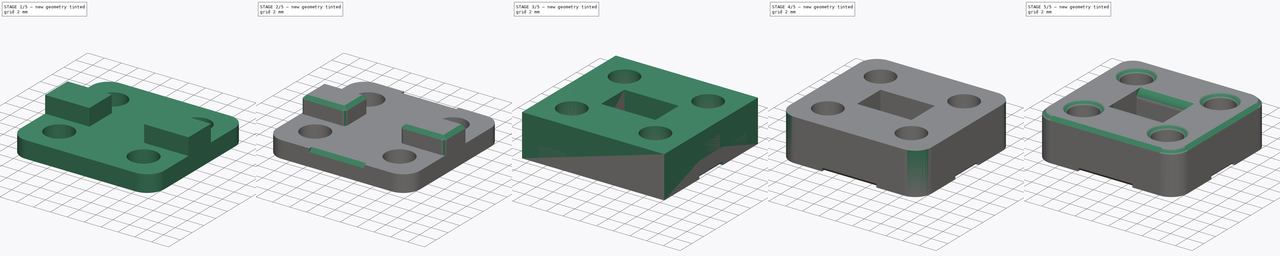
[diagram: build sequence overview — one tinted view per stage of 5, left to right]
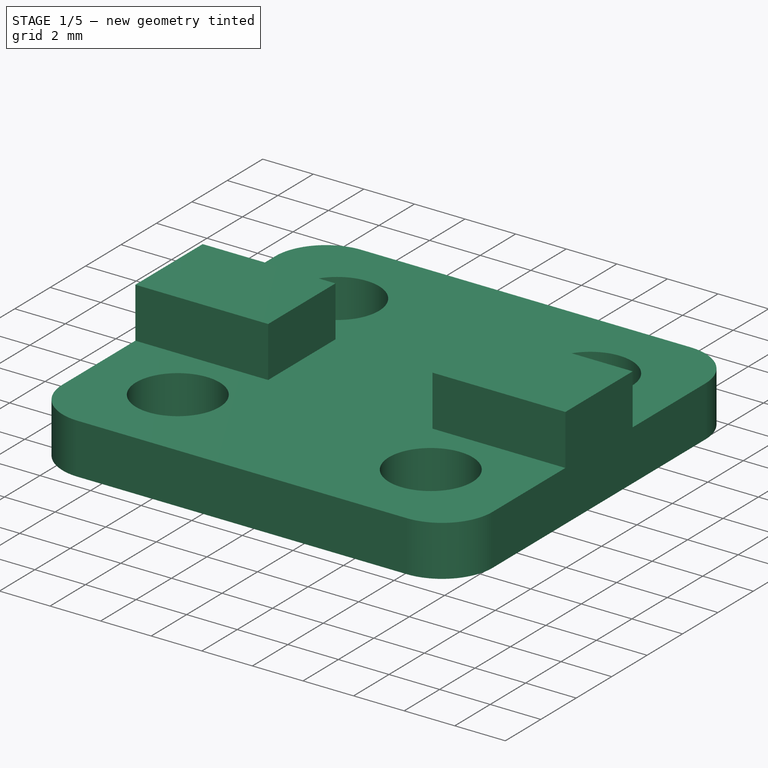
[diagram: stage 1 of 5 — iso view after this stage's code; geometry added in this stage tinted green]
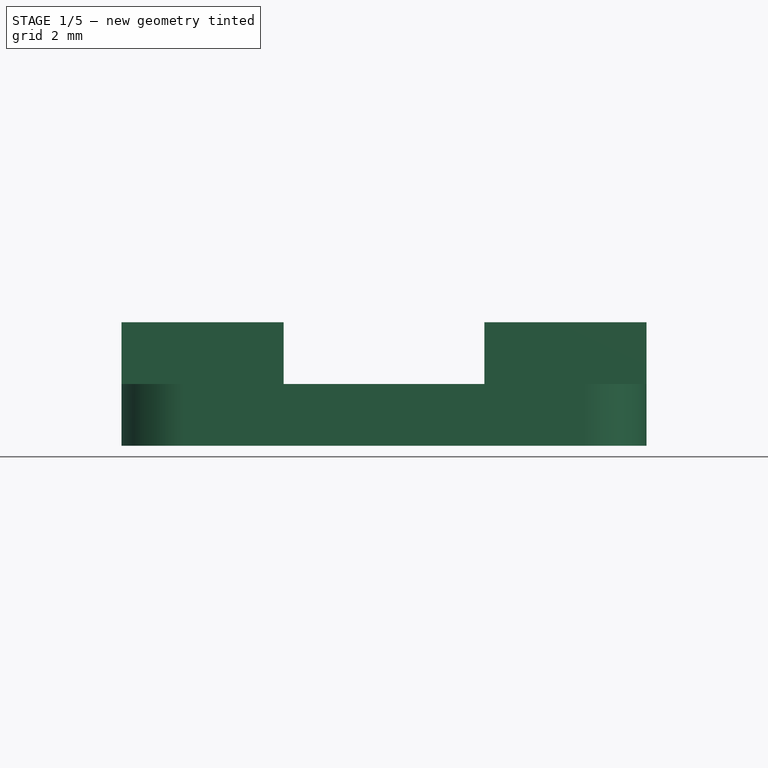
[diagram: stage 1 of 5 — front view after this stage's code; geometry added in this stage tinted green]
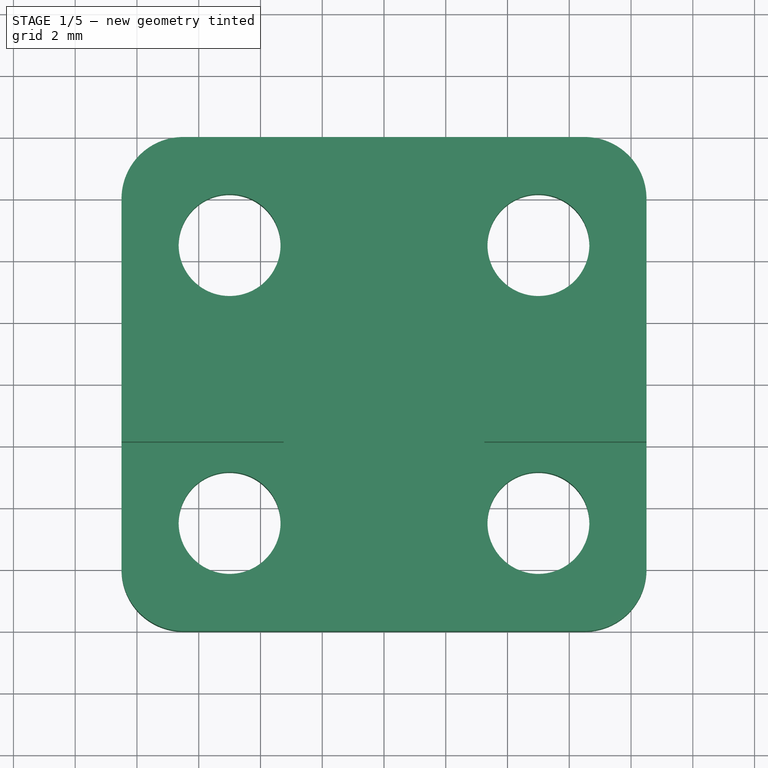
[diagram: stage 1 of 5 — top view after this stage's code; geometry added in this stage tinted green]
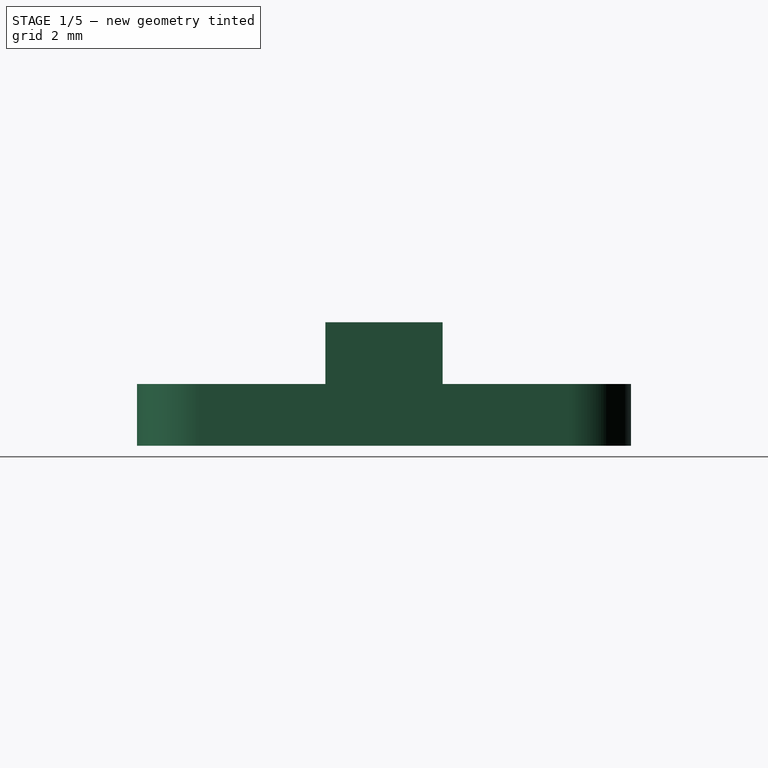
[diagram: stage 1 of 5 — right view after this stage's code; geometry added in this stage tinted green]
FCSTD DOCUMENT  (FreeCAD 0.19R24291 (Git))
Label: belt-mounter
License: All rights reserved
LicenseURL: http://en.wikipedia.org/wiki/All_rights_reserved
objects: Sketcher::SketchObject×8, PartDesign::Fillet×5, PartDesign::Pocket×5, PartDesign::Pad×3, PartDesign::Chamfer×3, PartDesign::Body×2
note: 42 computed .brp shape members not serialized (recipe doc carries the construction recipe); baked Part::Feature solids carry a one-line shape summary decoded from their .brp

FEATURE [Sketcher::SketchObject] Sketch
  FullyConstrained = false
  MapMode = 5
  Support = -> [XY_Plane]
  sketch-geometry (12):
    g0: Circle CenterX=-5 CenterY=4.5 CenterZ=0 NormalX=0 NormalY=0 NormalZ=1 AngleXU=0 Radius=1.65
    g1: Circle CenterX=5 CenterY=4.5 CenterZ=0 NormalX=0 NormalY=0 NormalZ=1 AngleXU=0 Radius=1.65
    g2: Circle CenterX=-5 CenterY=-4.5 CenterZ=0 NormalX=0 NormalY=0 NormalZ=1 AngleXU=0 Radius=1.65
    g3: Circle CenterX=5 CenterY=-4.5 CenterZ=0 NormalX=0 NormalY=0 NormalZ=1 AngleXU=0 Radius=1.65
    g4: LineSegment StartX=-3.25 StartY=18.4645 StartZ=0 EndX=3.25 EndY=18.4645 EndZ=0
    g5: LineSegment StartX=3.25 StartY=18.4645 StartZ=0 EndX=3.25 EndY=-11.2369 EndZ=0
    g6: LineSegment StartX=3.25 StartY=-11.2369 StartZ=0 EndX=-3.25 EndY=-11.2369 EndZ=0
    g7: LineSegment StartX=-3.25 StartY=-11.2369 StartZ=0 EndX=-3.25 EndY=18.4645 EndZ=0
    g8: LineSegment StartX=-8.5 StartY=8 StartZ=0 EndX=8.5 EndY=8 EndZ=0
    g9: LineSegment StartX=8.5 StartY=8 StartZ=0 EndX=8.5 EndY=-8 EndZ=0
    g10: LineSegment StartX=8.5 StartY=-8 StartZ=0 EndX=-8.5 EndY=-8 EndZ=0
    g11: LineSegment StartX=-8.5 StartY=-8 StartZ=0 EndX=-8.5 EndY=8 EndZ=0
  constraints (34):
    c: Horizontal(g0,g1)
    c: Horizontal(g2,g3)
    c: Vertical(g0,g2)
    c: Vertical(g1,g3)
    c: Equal(g2,g0)
    c: Equal(g0,g1)
    c: Equal(g1,g3)
    c: Radius(g1) = 1.65
    c: DistanceX(g0,g-1) = 5
    c: DistanceX(g0,g1) = 10
    c: DistanceY(g-1,g0) = 4.5
    c: DistanceY(g2,g0) = 9
    c: Coincident(g4,g5)
    c: Coincident(g5,g6)
    c: Coincident(g6,g7)
    c: Coincident(g7,g4)
    c: Horizontal(g4)
    c: Horizontal(g6)
    c: Vertical(g5)
    c: Vertical(g7)
    c: DistanceX(g4,g4) = 6.5
    c: DistanceX(g4,g-1) = 3.25
    c: Coincident(g8,g9)
    c: Coincident(g9,g10)
    c: Coincident(g10,g11)
    c: Coincident(g11,g8)
    c: Horizontal(g8)
    c: Horizontal(g10)
    c: Vertical(g9)
    c: Vertical(g11)
    c: DistanceX(g8,g0) = 3.5
    c: DistanceX(g1,g8) = 3.5
    c: DistanceY(g0,g8) = 3.5
    c: DistanceY(g9,g3) = 3.5
FEATURE [PartDesign::Pad] Pad
  Direction = (1,1,1)
  Length = 2
  Length2 = 100
  Profile = -> Sketch
  Type = 0
FEATURE [Sketcher::SketchObject] Sketch001
  FullyConstrained = true
  MapMode = 5
  Placement = pos=(0,0,2) rot=(0,0,1;0rad)
  Support = -> [Pad]
  sketch-geometry (8):
    g0: LineSegment StartX=-8.5 StartY=1.9 StartZ=0 EndX=-3.25 EndY=1.9 EndZ=0
    g1: LineSegment StartX=-3.25 StartY=1.9 StartZ=0 EndX=-3.25 EndY=-1.9 EndZ=0
    g2: LineSegment StartX=-3.25 StartY=-1.9 StartZ=0 EndX=-8.5 EndY=-1.9 EndZ=0
    g3: LineSegment StartX=-8.5 StartY=-1.9 StartZ=0 EndX=-8.5 EndY=1.9 EndZ=0
    g4: LineSegment StartX=3.25 StartY=1.9 StartZ=0 EndX=8.5 EndY=1.9 EndZ=0
    g5: LineSegment StartX=8.5 StartY=1.9 StartZ=0 EndX=8.5 EndY=-1.9 EndZ=0
    g6: LineSegment StartX=8.5 StartY=-1.9 StartZ=0 EndX=3.25 EndY=-1.9 EndZ=0
    g7: LineSegment StartX=3.25 StartY=-1.9 StartZ=0 EndX=3.25 EndY=1.9 EndZ=0
  constraints (24):
    c: Coincident(g0,g1)
    c: Coincident(g1,g2)
    c: Coincident(g2,g3)
    c: Coincident(g3,g0)
    c: Horizontal(g0)
    c: Horizontal(g2)
    c: Vertical(g1)
    c: Vertical(g3)
    c: Coincident(g4,g5)
    c: Coincident(g5,g6)
    c: Coincident(g6,g7)
    c: Coincident(g7,g4)
    c: Horizontal(g4)
    c: Horizontal(g6)
    c: Vertical(g5)
    c: Vertical(g7)
    c: Horizontal(g1,g6)
    c: Horizontal(g4,g0)
    c: DistanceX(g1,g-1) = 3.25
    c: DistanceX(g-1,g6) = 3.25
    c: DistanceX(g0,g-1) = 8.5
    c: DistanceX(g-1,g4) = 8.5
    c: DistanceY(g1,g-1) = 1.9
    c: DistanceY(g1,g1) = 3.8
FEATURE [PartDesign::Pad] Pad001
  BaseFeature = -> Pad
  Direction = (1,1,1)
  Length = 2
  Length2 = 100
  Profile = -> Sketch001
  Type = 0
FEATURE [PartDesign::Fillet] Fillet
  Base = -> Pad001 [Edge10,Edge5,Edge2,Edge1]
  BaseFeature = -> Pad001
  Radius = 2
  Refine = true
  SupportTransform = false
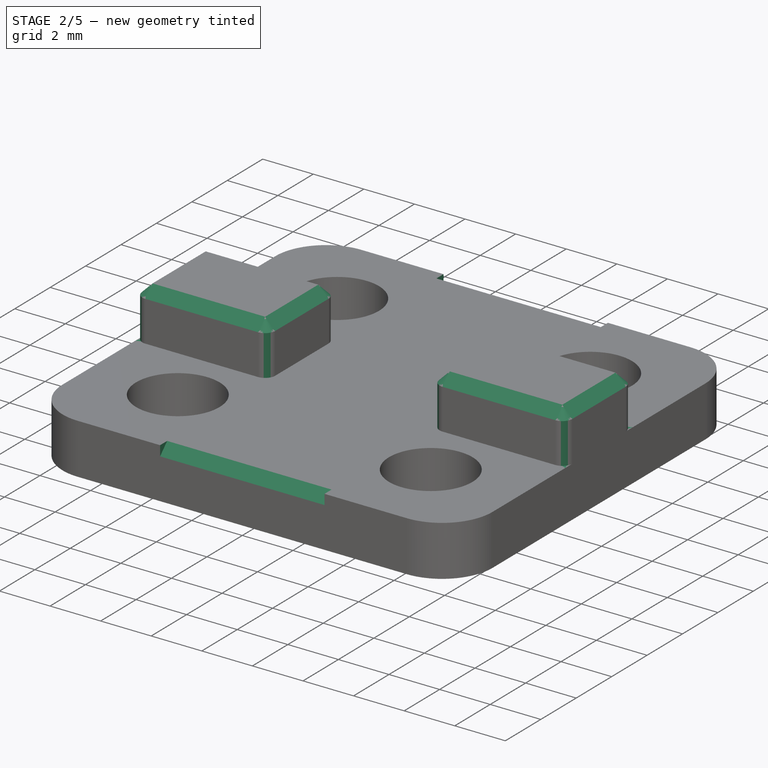
[diagram: stage 2 of 5 — iso view after this stage's code; geometry added in this stage tinted green]
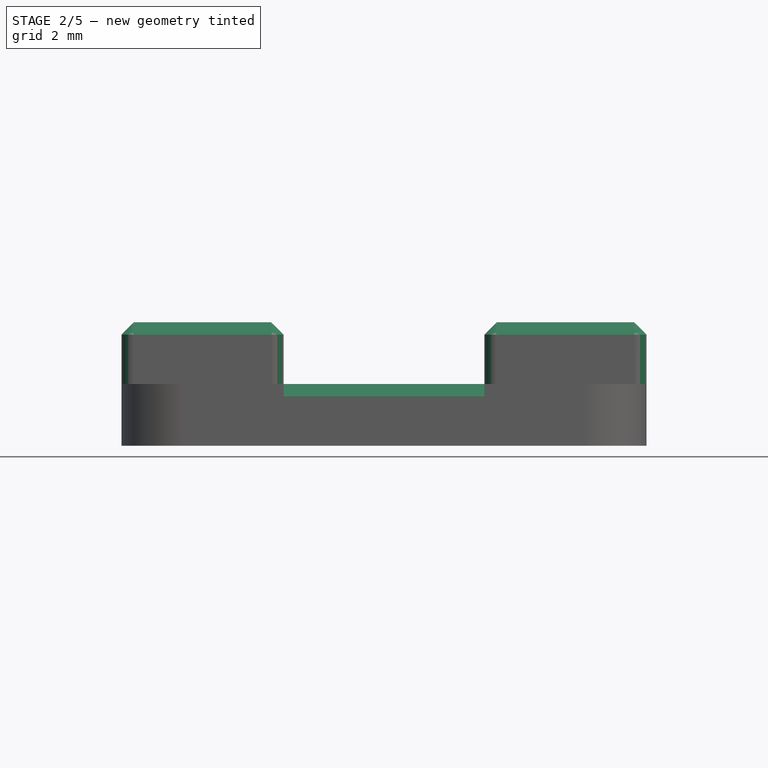
[diagram: stage 2 of 5 — front view after this stage's code; geometry added in this stage tinted green]
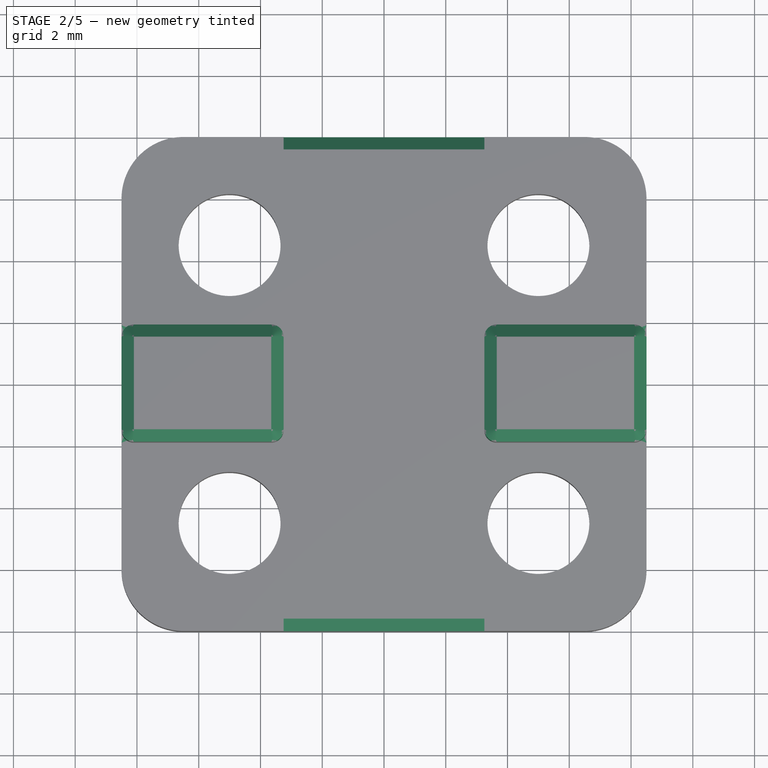
[diagram: stage 2 of 5 — top view after this stage's code; geometry added in this stage tinted green]
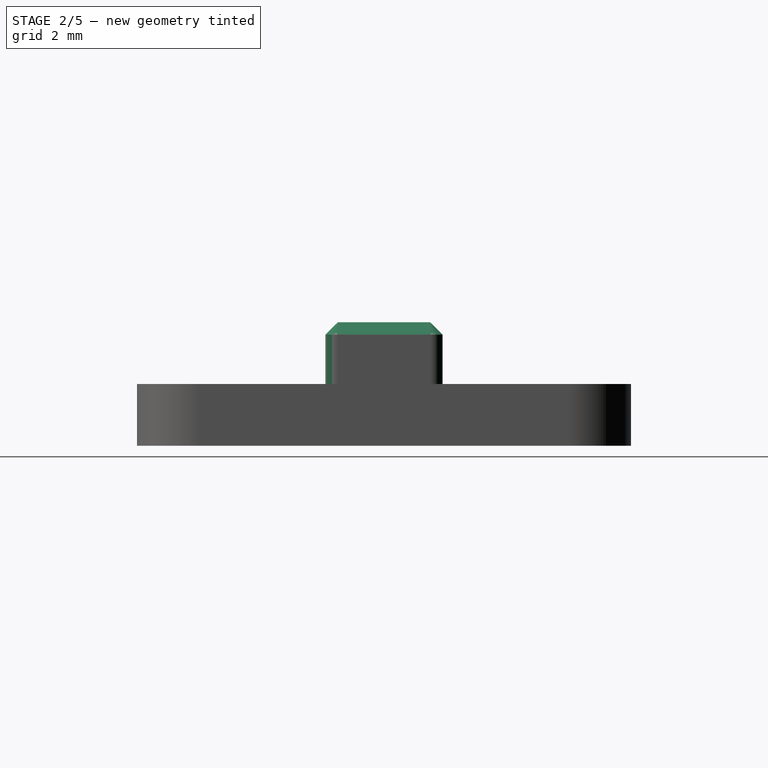
[diagram: stage 2 of 5 — right view after this stage's code; geometry added in this stage tinted green]
FEATURE [PartDesign::Fillet] Fillet001
  Base = -> Fillet [Edge57,Edge53,Edge48,Edge46,Edge52,Edge55,Edge45,Edge50]
  BaseFeature = -> Fillet
  Radius = 0.4
  SupportTransform = false
FEATURE [PartDesign::Chamfer] Chamfer
  Angle = 45
  Base = -> Fillet001 [Face30,Face28]
  BaseFeature = -> Fillet001
  ChamferType = 0
  FlipDirection = false
  Size = 0.4
  Size2 = 1
  SupportTransform = false
FEATURE [Sketcher::SketchObject] Sketch009
  FullyConstrained = true
  MapMode = 5
  Placement = pos=(0,0,0) rot=(0.57735,0.57735,0.57735;2.0944rad)
  Support = -> [YZ_Plane]
  sketch-geometry (6):
    g0: LineSegment StartX=-8 StartY=1.6 StartZ=0 EndX=-8 EndY=2 EndZ=0
    g1: LineSegment StartX=-8 StartY=2 StartZ=0 EndX=-7.6 EndY=2 EndZ=0
    g2: LineSegment StartX=-7.6 StartY=2 StartZ=0 EndX=-8 EndY=1.6 EndZ=0
    g3: LineSegment StartX=7.6 StartY=2 StartZ=0 EndX=8 EndY=2 EndZ=0
    g4: LineSegment StartX=8 StartY=2 StartZ=0 EndX=8 EndY=1.6 EndZ=0
    g5: LineSegment StartX=8 StartY=1.6 StartZ=0 EndX=7.6 EndY=2 EndZ=0
  constraints (18):
    c: Coincident(g0,g1)
    c: Horizontal(g1)
    c: Coincident(g1,g2)
    c: Coincident(g2,g0)
    c: Horizontal(g3)
    c: Coincident(g3,g4)
    c: Vertical(g4)
    c: Coincident(g4,g5)
    c: Coincident(g5,g3)
    c: Vertical(g0)
    c: Equal(g0,g1)
    c: Equal(g1,g3)
    c: Equal(g3,g4)
    c: Distance(g3) = 0.4
    c: Horizontal(g3,g1)
    c: DistanceY(g-1,g1) = 2
    c: DistanceX(g0,g-1) = 8
    c: DistanceX(g-1,g4) = 8
FEATURE [PartDesign::Pocket] Pocket006
  BaseFeature = -> Chamfer
  Length = 6.5
  Length2 = 100
  Midplane = true
  Profile = -> Sketch009
  Type = 0
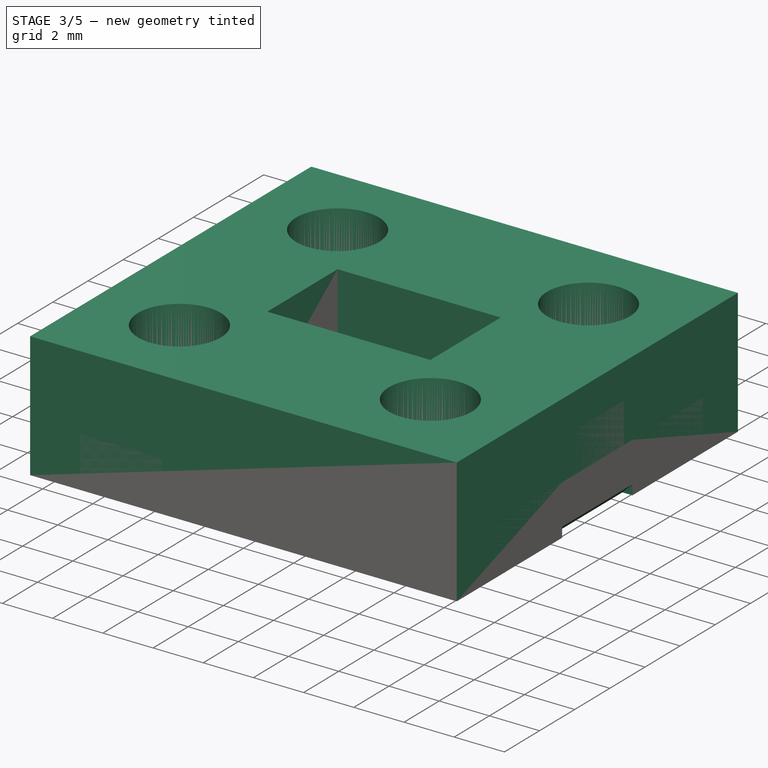
[diagram: stage 3 of 5 — iso view after this stage's code; geometry added in this stage tinted green]
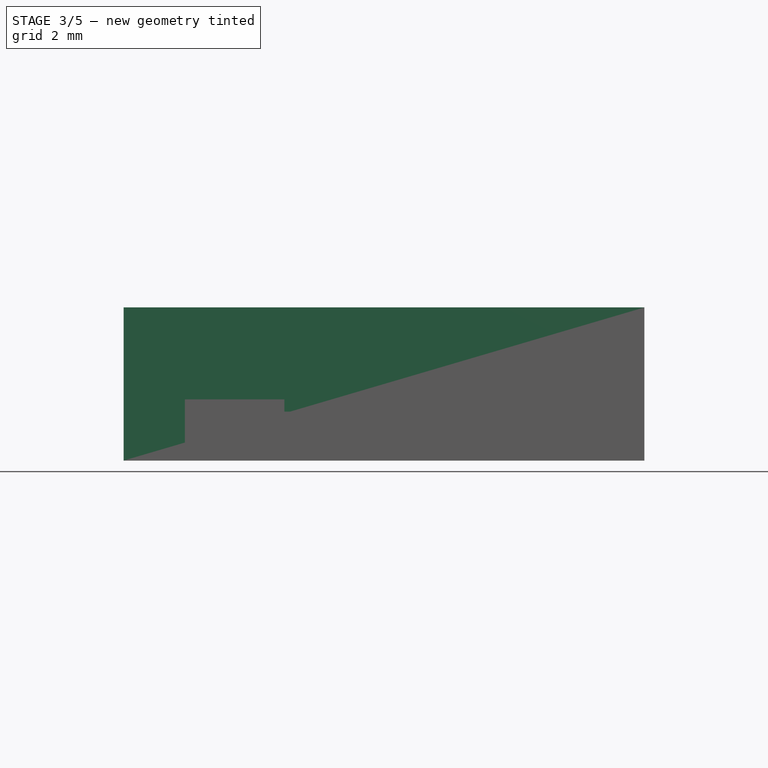
[diagram: stage 3 of 5 — front view after this stage's code; geometry added in this stage tinted green]
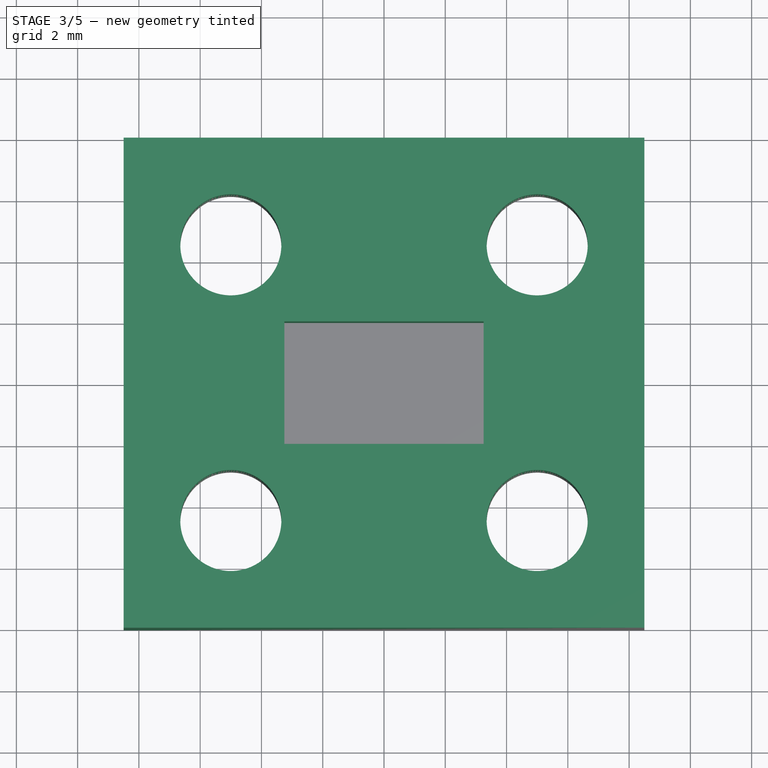
[diagram: stage 3 of 5 — top view after this stage's code; geometry added in this stage tinted green]
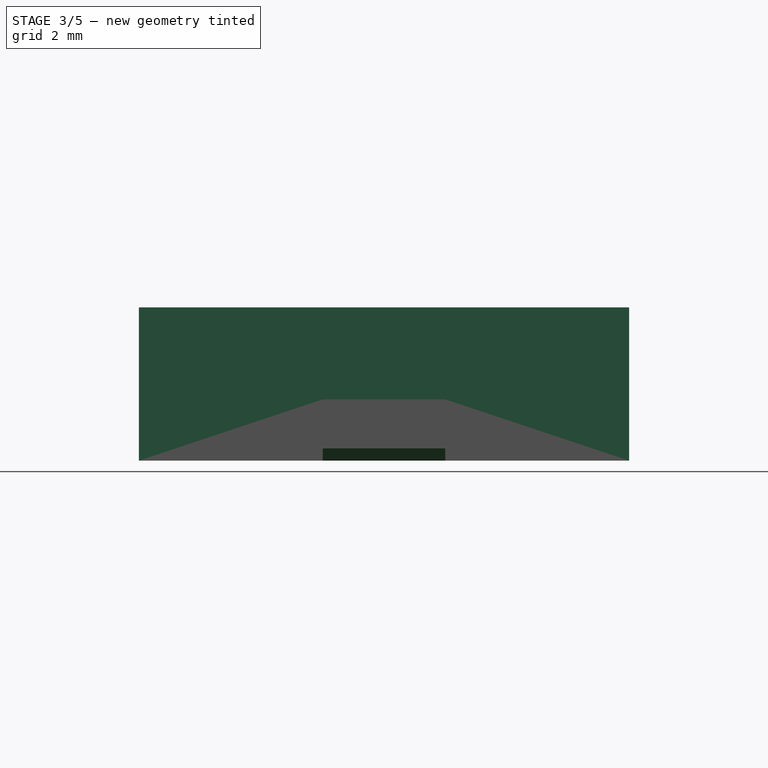
[diagram: stage 3 of 5 — right view after this stage's code; geometry added in this stage tinted green]
FEATURE [Sketcher::SketchObject] Sketch002
  FullyConstrained = true
  MapMode = 5
  Support = -> [XY_Plane001]
  sketch-geometry (8):
    g0: Circle CenterX=-5 CenterY=4.5 CenterZ=0 NormalX=0 NormalY=0 NormalZ=1 AngleXU=0 Radius=1.65
    g1: Circle CenterX=5 CenterY=4.5 CenterZ=0 NormalX=0 NormalY=0 NormalZ=1 AngleXU=0 Radius=1.65
    g2: Circle CenterX=-5 CenterY=-4.5 CenterZ=0 NormalX=0 NormalY=0 NormalZ=1 AngleXU=0 Radius=1.65
    g3: Circle CenterX=5 CenterY=-4.5 CenterZ=0 NormalX=0 NormalY=0 NormalZ=1 AngleXU=0 Radius=1.65
    g4: LineSegment StartX=-8.5 StartY=8 StartZ=0 EndX=8.5 EndY=8 EndZ=0
    g5: LineSegment StartX=8.5 StartY=8 StartZ=0 EndX=8.5 EndY=-8 EndZ=0
    g6: LineSegment StartX=8.5 StartY=-8 StartZ=0 EndX=-8.5 EndY=-8 EndZ=0
    g7: LineSegment StartX=-8.5 StartY=-8 StartZ=0 EndX=-8.5 EndY=8 EndZ=0
  constraints (24):
    c: Equal(g0,g2)
    c: Equal(g2,g3)
    c: Equal(g3,g1)
    c: Horizontal(g0,g1)
    c: Horizontal(g2,g3)
    c: Vertical(g2,g0)
    c: Vertical(g3,g1)
    c: DistanceX(g0,g-1) = 5
    c: DistanceX(g0,g1) = 10
    c: DistanceY(g-1,g0) = 4.5
    c: DistanceY(g2,g0) = 9
    c: Radius(g1) = 1.65
    c: Coincident(g4,g5)
    c: Coincident(g5,g6)
    c: Coincident(g6,g7)
    c: Coincident(g7,g4)
    c: Horizontal(g4)
    c: Horizontal(g6)
    c: Vertical(g5)
    c: Vertical(g7)
    c: DistanceX(g4,g-1) = 8.5
    c: DistanceX(g4,g4) = 17
    c: DistanceY(g-1,g4) = 8
    c: DistanceY(g7,g7) = 16
FEATURE [PartDesign::Pad] Pad002
  Direction = (1,1,1)
  Length = 5
  Length2 = 100
  Profile = -> Sketch002
  Type = 0
FEATURE [Sketcher::SketchObject] Sketch003
  FullyConstrained = true
  MapMode = 5
  Placement = pos=(0,0,0) rot=(1,0,0;3.14159rad)
  Support = -> [Pad002]
  sketch-geometry (4):
    g0: LineSegment StartX=-8.5 StartY=2 StartZ=0 EndX=8.5 EndY=2 EndZ=0
    g1: LineSegment StartX=8.5 StartY=2 StartZ=0 EndX=8.5 EndY=-2 EndZ=0
    g2: LineSegment StartX=8.5 StartY=-2 StartZ=0 EndX=-8.5 EndY=-2 EndZ=0
    g3: LineSegment StartX=-8.5 StartY=-2 StartZ=0 EndX=-8.5 EndY=2 EndZ=0
  constraints (12):
    c: Coincident(g0,g1)
    c: Coincident(g1,g2)
    c: Coincident(g2,g3)
    c: Coincident(g3,g0)
    c: Horizontal(g0)
    c: Horizontal(g2)
    c: Vertical(g1)
    c: Vertical(g3)
    c: DistanceX(g0,g-1) = 8.5
    c: DistanceX(g0,g0) = 17
    c: DistanceY(g3,g3) = 4
    c: DistanceY(g-1,g0) = 2
FEATURE [PartDesign::Pocket] Pocket
  BaseFeature = -> Pad002
  Length = 2
  Length2 = 100
  Profile = -> Sketch003
  Type = 0
FEATURE [Sketcher::SketchObject] Sketch004
  FullyConstrained = true
  MapMode = 5
  Placement = pos=(0,0,2) rot=(1,0,0;3.14159rad)
  Support = -> [Pocket]
  sketch-geometry (4):
    g0: LineSegment StartX=-3.25 StartY=2 StartZ=0 EndX=3.25 EndY=2 EndZ=0
    g1: LineSegment StartX=3.25 StartY=2 StartZ=0 EndX=3.25 EndY=-2 EndZ=0
    g2: LineSegment StartX=3.25 StartY=-2 StartZ=0 EndX=-3.25 EndY=-2 EndZ=0
    g3: LineSegment StartX=-3.25 StartY=-2 StartZ=0 EndX=-3.25 EndY=2 EndZ=0
  constraints (12):
    c: Coincident(g0,g1)
    c: Coincident(g1,g2)
    c: Coincident(g2,g3)
    c: Coincident(g3,g0)
    c: Horizontal(g0)
    c: Horizontal(g2)
    c: Vertical(g1)
    c: Vertical(g3)
    c: DistanceX(g0,g0) = 6.5
    c: DistanceX(g0,g-1) = 3.25
    c: DistanceY(g3,g3) = 4
    c: DistanceY(g-1,g0) = 2
FEATURE [PartDesign::Pocket] Pocket001
  BaseFeature = -> Pocket
  Length = 5
  Length2 = 100
  Profile = -> Sketch004
  Type = 0
FEATURE [PartDesign::Body] Body001  label="top"
  Group = -> [Sketch002,Pad002,Sketch003,Pocket,Sketch004,Pocket001,Sketch005,Pocket002,Sketch006,Pocket003,Fillet002,Fillet003,Fillet004,Chamfer001]
  Origin = -> Origin001
  Tip = -> Chamfer001
FEATURE [PartDesign::Chamfer] Chamfer002
  Angle = 45
  Base = -> Pocket006 [Face39]
  BaseFeature = -> Pocket006
  ChamferType = 0
  FlipDirection = false
  Size = 0.4
  Size2 = 1
  SupportTransform = false
FEATURE [PartDesign::Body] Body  label="bottom"
  Group = -> [Sketch,Pad,Sketch001,Pad001,Fillet,Fillet001,Chamfer,Sketch009,Pocket006,Chamfer002]
  Origin = -> Origin
  Placement = pos=(0,0,-2) rot=(0,0,1;0rad)
  Tip = -> Chamfer002
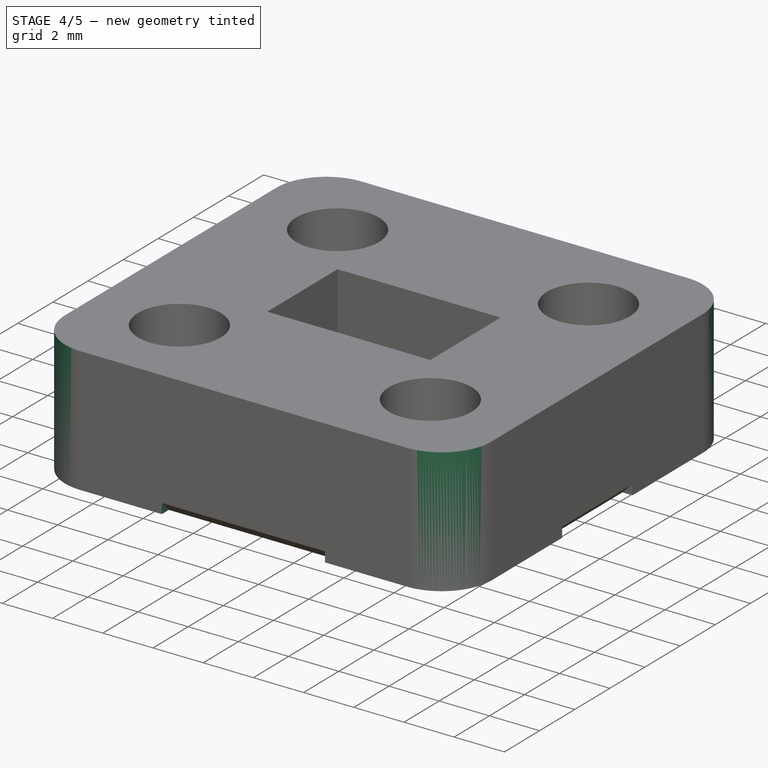
[diagram: stage 4 of 5 — iso view after this stage's code; geometry added in this stage tinted green]
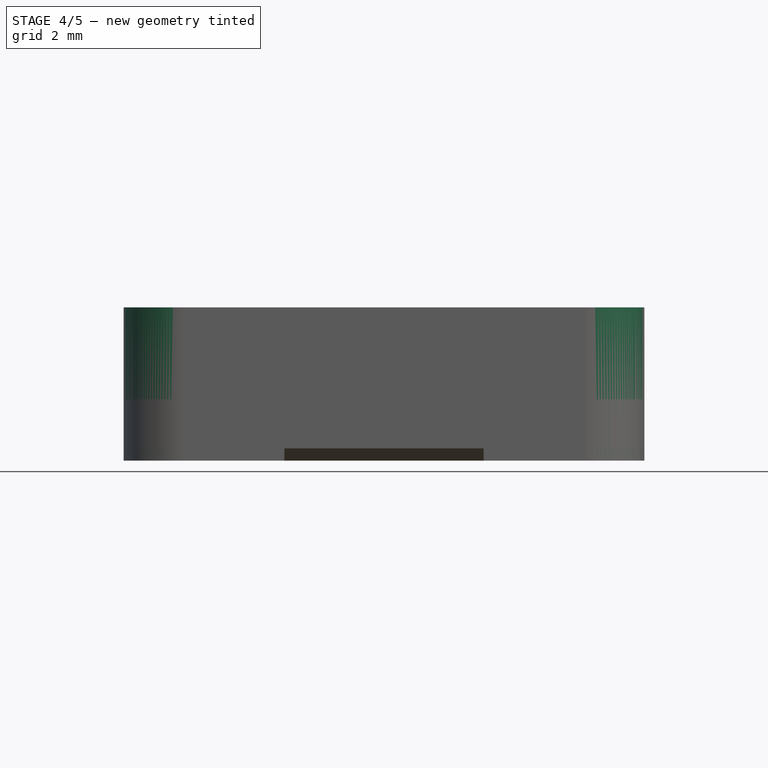
[diagram: stage 4 of 5 — front view after this stage's code; geometry added in this stage tinted green]
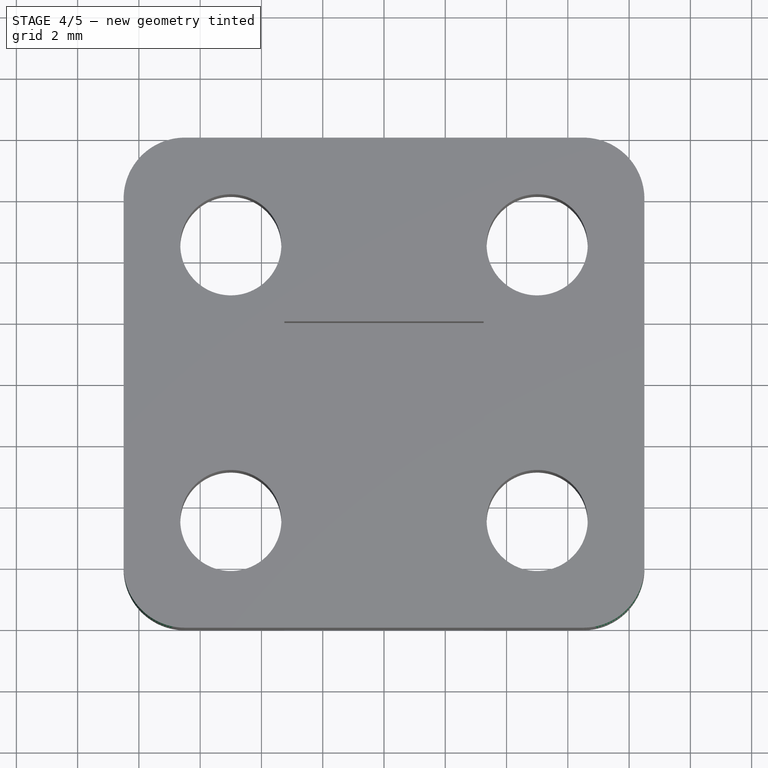
[diagram: stage 4 of 5 — top view after this stage's code; geometry added in this stage tinted green]
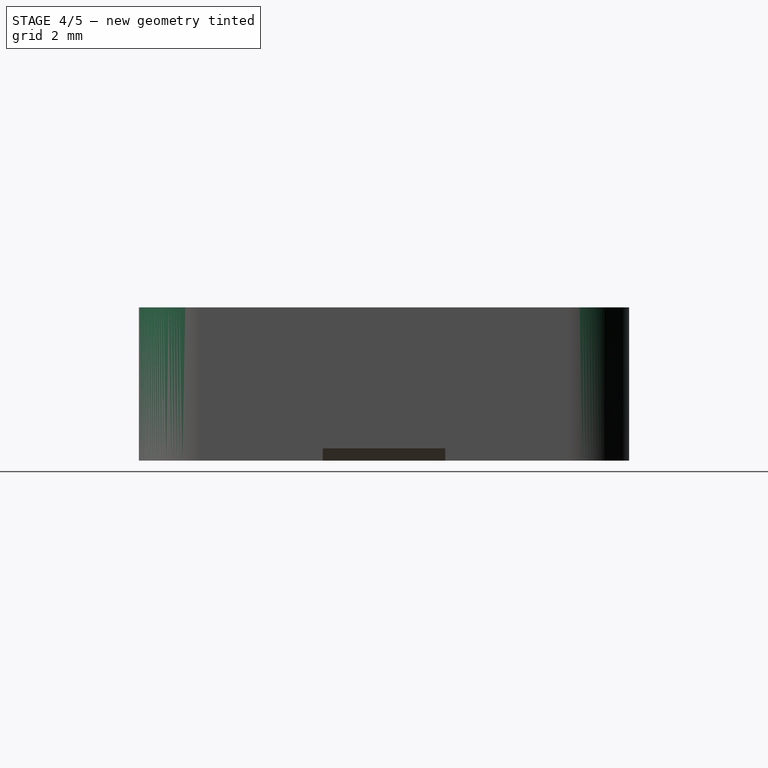
[diagram: stage 4 of 5 — right view after this stage's code; geometry added in this stage tinted green]
FEATURE [Sketcher::SketchObject] Sketch005
  FullyConstrained = true
  MapMode = 5
  Placement = pos=(0,0,0) rot=(1,0,0;3.14159rad)
  Support = -> [Pocket001]
  sketch-geometry (4):
    g0: LineSegment StartX=-3.25 StartY=8 StartZ=0 EndX=3.25 EndY=8 EndZ=0
    g1: LineSegment StartX=3.25 StartY=8 StartZ=0 EndX=3.25 EndY=-8 EndZ=0
    g2: LineSegment StartX=3.25 StartY=-8 StartZ=0 EndX=-3.25 EndY=-8 EndZ=0
    g3: LineSegment StartX=-3.25 StartY=-8 StartZ=0 EndX=-3.25 EndY=8 EndZ=0
  constraints (12):
    c: Coincident(g0,g1)
    c: Coincident(g1,g2)
    c: Coincident(g2,g3)
    c: Coincident(g3,g0)
    c: Horizontal(g0)
    c: Horizontal(g2)
    c: Vertical(g1)
    c: Vertical(g3)
    c: DistanceX(g0,g-1) = 3.25
    c: DistanceX(g0,g0) = 6.5
    c: DistanceY(g-1,g0) = 8
    c: DistanceY(g2,g-1) = 8
FEATURE [PartDesign::Pocket] Pocket002
  BaseFeature = -> Pocket001
  Length = 0.5
  Length2 = 100
  Profile = -> Sketch005
  Refine = true
  Type = 0
FEATURE [Sketcher::SketchObject] Sketch006
  FullyConstrained = true
  MapMode = 5
  Placement = pos=(0,0,0.5) rot=(1,0,0;3.14159rad)
  Support = -> [Pocket002]
  sketch-geometry (20):
    g0: LineSegment StartX=-3.25 StartY=5.2 StartZ=0 EndX=3.25 EndY=5.2 EndZ=0
    g1: LineSegment StartX=3.25 StartY=5.2 StartZ=0 EndX=3.25 EndY=4 EndZ=0
    g2: LineSegment StartX=3.25 StartY=4 StartZ=0 EndX=-3.25 EndY=4 EndZ=0
    g3: LineSegment StartX=-3.25 StartY=4 StartZ=0 EndX=-3.25 EndY=5.2 EndZ=0
    g4: LineSegment StartX=-3.25 StartY=7.2 StartZ=0 EndX=3.25 EndY=7.2 EndZ=0
    g5: LineSegment StartX=3.25 StartY=7.2 StartZ=0 EndX=3.25 EndY=6 EndZ=0
    g6: LineSegment StartX=3.25 StartY=6 StartZ=0 EndX=-3.25 EndY=6 EndZ=0
    g7: LineSegment StartX=-3.25 StartY=6 StartZ=0 EndX=-3.25 EndY=7.2 EndZ=0
    g8: LineSegment StartX=-3.25 StartY=-4 StartZ=0 EndX=3.25 EndY=-4 EndZ=0
    g9: LineSegment StartX=3.25 StartY=-4 StartZ=0 EndX=3.25 EndY=-5.2 EndZ=0
    g10: LineSegment StartX=3.25 StartY=-5.2 StartZ=0 EndX=-3.25 EndY=-5.2 EndZ=0
    g11: LineSegment StartX=-3.25 StartY=-5.2 StartZ=0 EndX=-3.25 EndY=-4 EndZ=0
    g12: LineSegment StartX=-3.25 StartY=-6 StartZ=0 EndX=3.25 EndY=-6 EndZ=0
    g13: LineSegment StartX=3.25 StartY=-6 StartZ=0 EndX=3.25 EndY=-7.2 EndZ=0
    g14: LineSegment StartX=3.25 StartY=-7.2 StartZ=0 EndX=-3.25 EndY=-7.2 EndZ=0
    g15: LineSegment StartX=-3.25 StartY=-7.2 StartZ=0 EndX=-3.25 EndY=-6 EndZ=0
    g16: LineSegment StartX=-3.25 StartY=3.2 StartZ=0 EndX=3.25 EndY=3.2 EndZ=0
    g17: LineSegment StartX=3.25 StartY=3.2 StartZ=0 EndX=3.25 EndY=-3.2 EndZ=0
    g18: LineSegment StartX=3.25 StartY=-3.2 StartZ=0 EndX=-3.25 EndY=-3.2 EndZ=0
    g19: LineSegment StartX=-3.25 StartY=-3.2 StartZ=0 EndX=-3.25 EndY=3.2 EndZ=0
  constraints (60):
    c: Coincident(g0,g1)
    c: Coincident(g1,g2)
    c: Coincident(g2,g3)
    c: Coincident(g3,g0)
    c: Horizontal(g0)
    c: Horizontal(g2)
    c: Vertical(g1)
    c: Vertical(g3)
    c: Coincident(g4,g5)
    c: Coincident(g5,g6)
    c: Coincident(g6,g7)
    c: Coincident(g7,g4)
    c: Horizontal(g4)
    c: Horizontal(g6)
    c: Vertical(g5)
    c: Vertical(g7)
    c: Coincident(g8,g9)
    c: Coincident(g9,g10)
    c: Coincident(g10,g11)
    c: Coincident(g11,g8)
    c: Horizontal(g8)
    c: Horizontal(g10)
    c: Vertical(g9)
    c: Vertical(g11)
    c: Coincident(g12,g13)
    c: Coincident(g13,g14)
    c: Coincident(g14,g15)
    c: Coincident(g15,g12)
    c: Horizontal(g12)
    c: Horizontal(g14)
    c: Vertical(g13)
    c: Vertical(g15)
    c: Vertical(g12,g10)
    c: Vertical(g10,g2)
    c: Vertical(g2,g6)
    c: Vertical(g13,g9)
    c: Vertical(g9,g1)
    c: Vertical(g1,g5)
    c: DistanceX(g4,g4) = 6.5
    c: DistanceX(g-1,g1) = 3.25
    c: Equal(g7,g3)
    c: Equal(g3,g11)
    c: Equal(g11,g15)
    c: DistanceY(g7,g7) = 1.2
    c: DistanceY(g0,g6) = 0.8
    c: DistanceY(g12,g10) = 0.8
    c: DistanceY(g13,g-1) = 7.2
    c: DistanceY(g-1,g4) = 7.2
    c: Coincident(g16,g17)
    c: Coincident(g17,g18)
    c: Coincident(g18,g19)
    c: Coincident(g19,g16)
    c: Horizontal(g16)
    c: Horizontal(g18)
    c: Vertical(g17)
    c: Vertical(g19)
    c: Vertical(g16,g2)
    c: Vertical(g16,g1)
    c: DistanceY(g16,g2) = 0.8
    c: DistanceY(g8,g18) = 0.8
FEATURE [PartDesign::Pocket] Pocket003
  BaseFeature = -> Pocket002
  Length = 0.8
  Length2 = 100
  Profile = -> Sketch006
  Refine = true
  Type = 0
FEATURE [PartDesign::Fillet] Fillet002
  Base = -> Pocket003 [Edge61,Edge43,Edge45,Edge77]
  BaseFeature = -> Pocket003
  Radius = 2
  SupportTransform = false
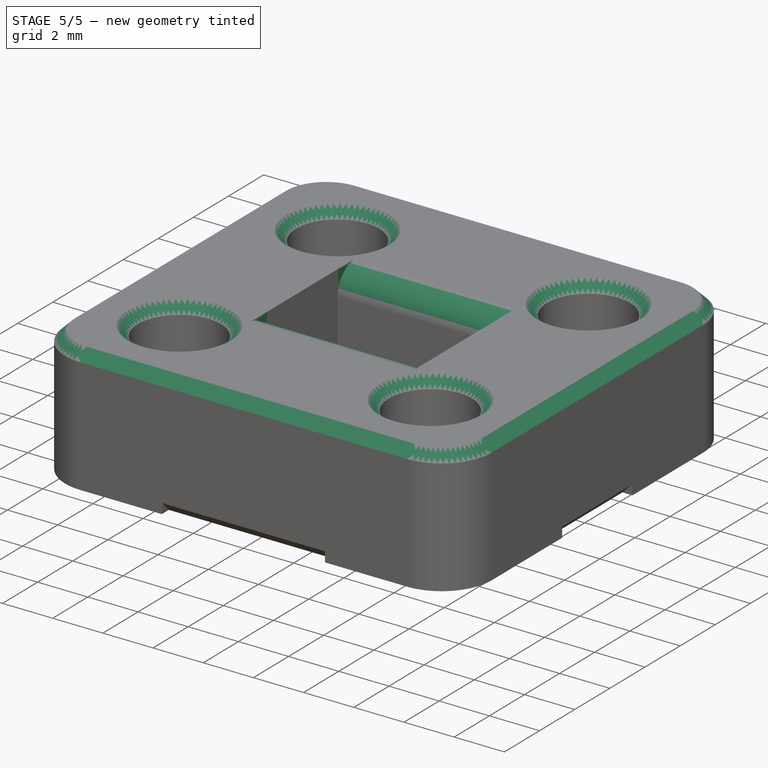
[diagram: stage 5 of 5 — iso view after this stage's code; geometry added in this stage tinted green]
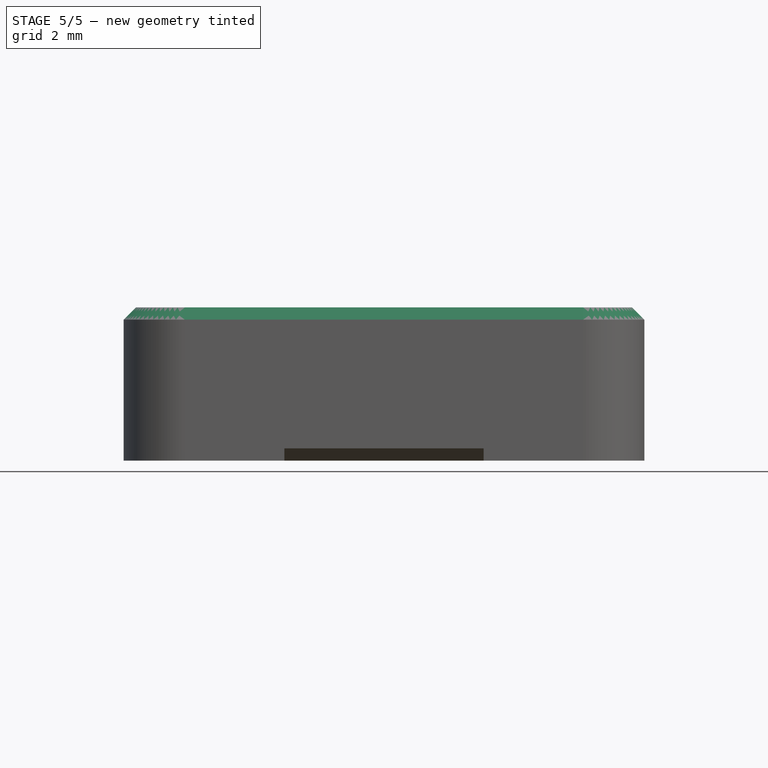
[diagram: stage 5 of 5 — front view after this stage's code; geometry added in this stage tinted green]
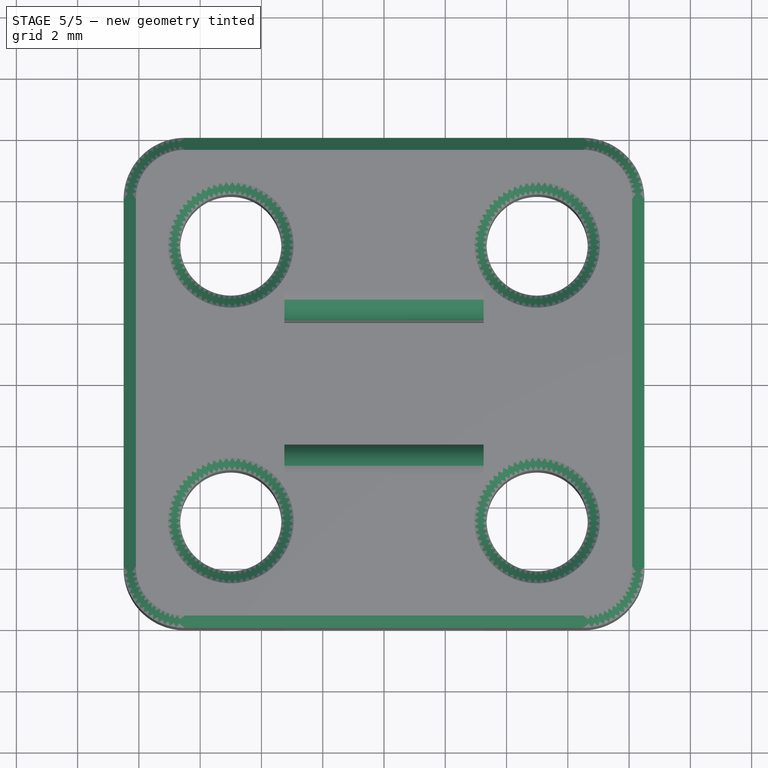
[diagram: stage 5 of 5 — top view after this stage's code; geometry added in this stage tinted green]
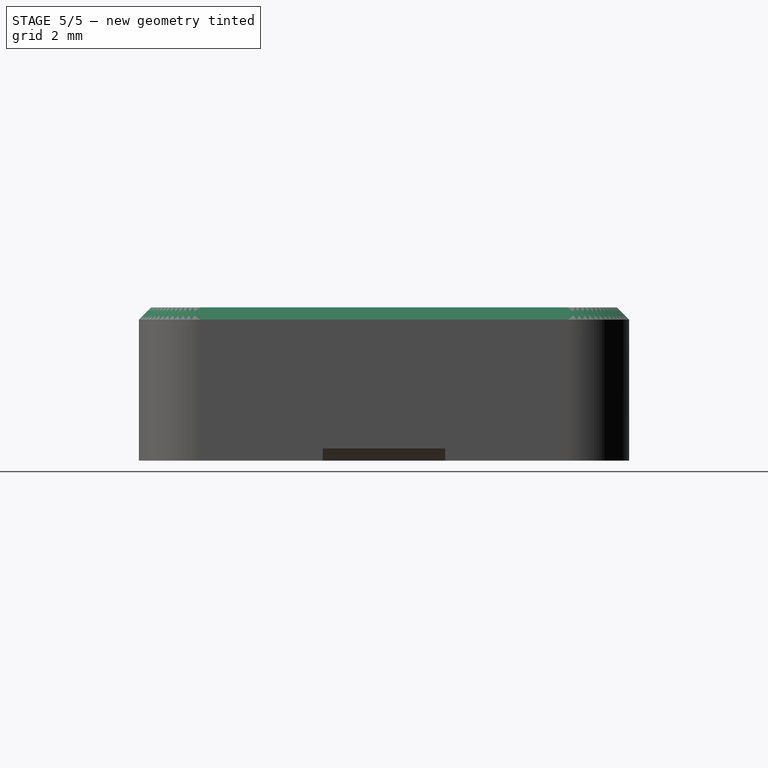
[diagram: stage 5 of 5 — right view after this stage's code; geometry added in this stage tinted green]
FEATURE [PartDesign::Fillet] Fillet003
  Base = -> Fillet002 [Edge106,Edge66]
  BaseFeature = -> Fillet002
  Radius = 0.5
  SupportTransform = false
FEATURE [PartDesign::Fillet] Fillet004
  Base = -> Fillet003 [Edge32,Edge91]
  BaseFeature = -> Fillet003
  Radius = 1
  SupportTransform = false
FEATURE [PartDesign::Chamfer] Chamfer001
  Angle = 45
  Base = -> Fillet004 [Edge47,Edge90,Edge91,Edge89,Edge88]
  BaseFeature = -> Fillet004
  ChamferType = 0
  FlipDirection = false
  Size = 0.4
  Size2 = 1
  SupportTransform = false
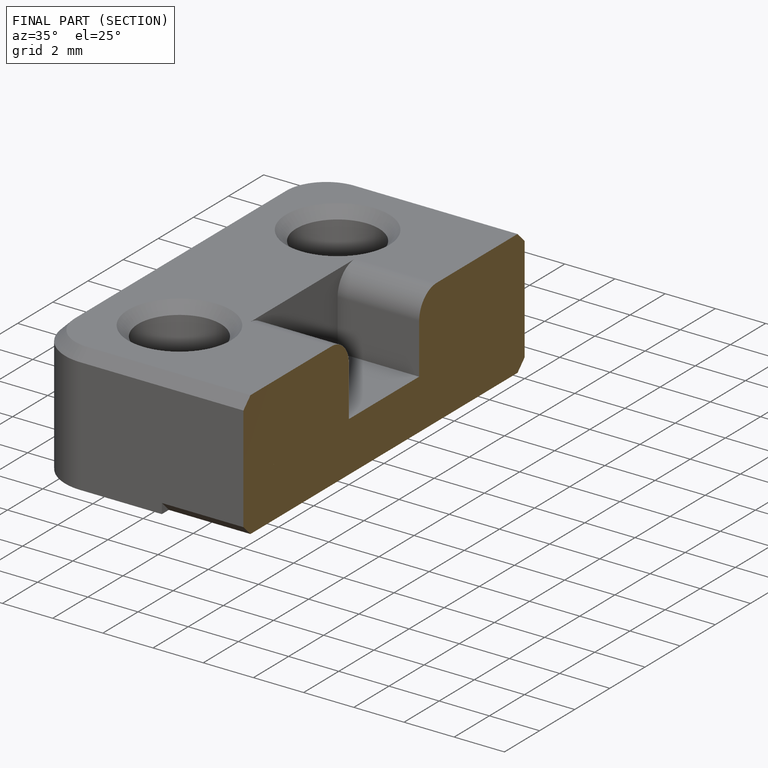
[diagram: finished part — half-section view (interior)]
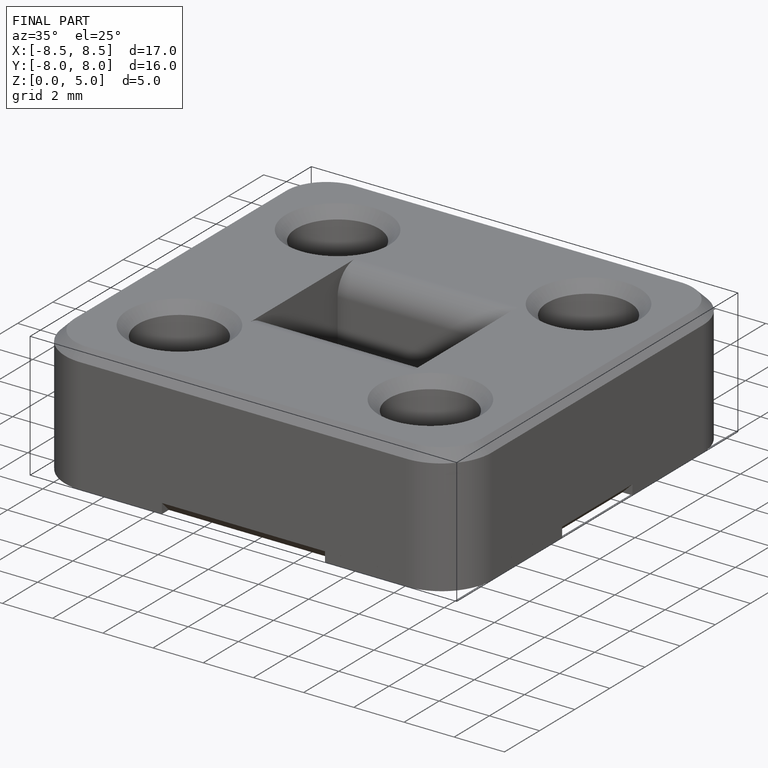
[diagram: finished part — iso view with bounding-box wireframe]
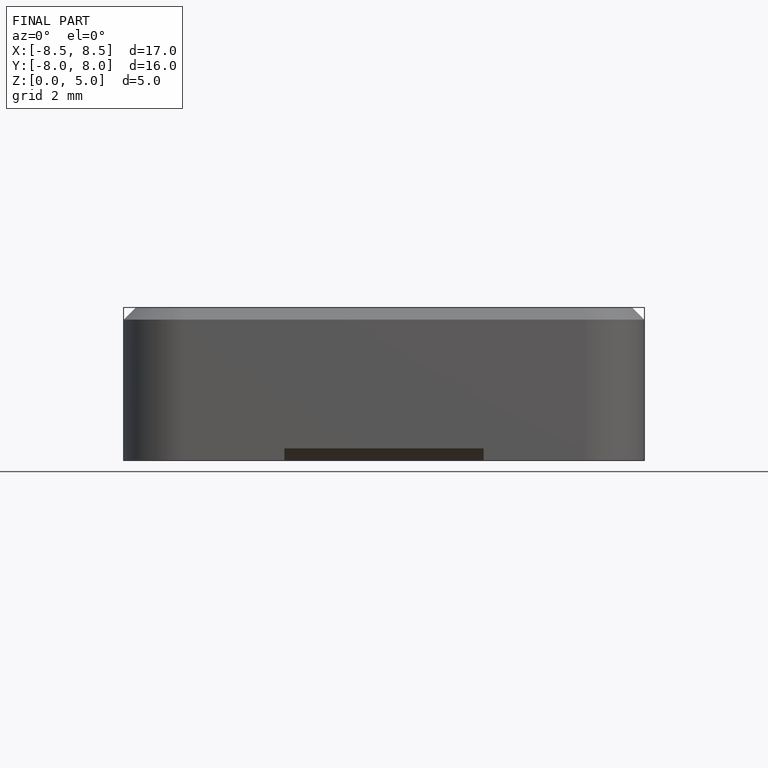
[diagram: finished part — front view with bounding-box wireframe]
